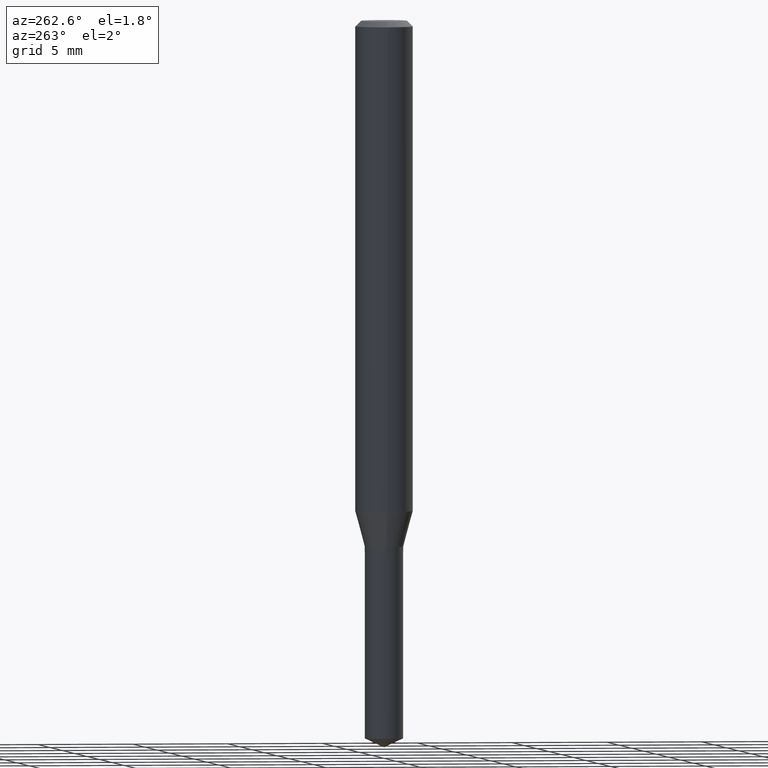
[diagram: clean part render]
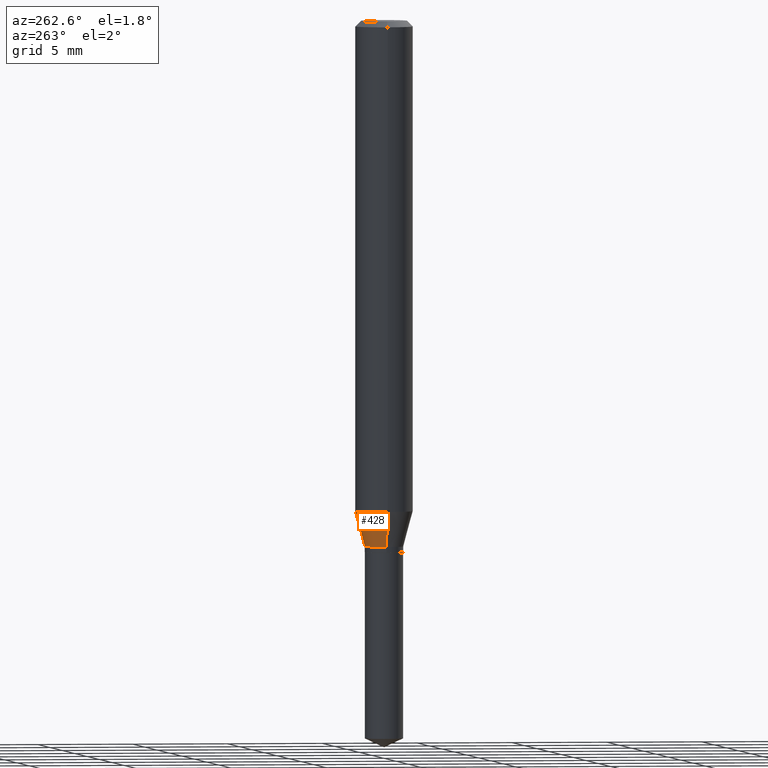
[diagram: same view with one face highlighted and labeled with its STEP entity id]
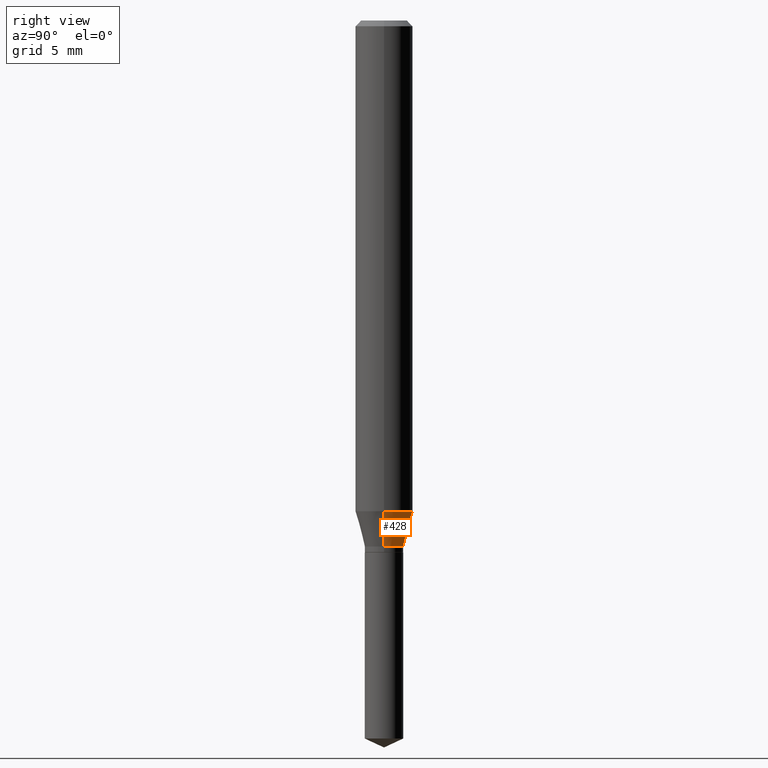
[diagram: same view with one face highlighted and labeled with its STEP entity id]
A machine part, auxiliary view. The second image highlights one B-rep face of the part: STEP entity #428.
A second angle (right view) of the same face is appended — the face is thin or edge-on in the first view.
In plain terms, the highlighted conical surface has half-angle 15 deg.
Its self-contained STEP definition (entity closure, byte-faithful):
#2 = CARTESIAN_POINT ( 'NONE',  ( -0.03954999999999996019, -3.518759489069875507E-15, -1.082600000000000007 ) ) ;
#11 = ORIENTED_EDGE ( 'NONE', *, *, #432, .F. ) ;
#46 = CIRCLE ( 'NONE', #184, 0.03954999999999996019 ) ;
#52 = VECTOR ( 'NONE', #305, 39.37007874015747433 ) ;
#56 = DIRECTION ( 'NONE',  ( -2.445468806185136597E-29, 3.491481338843145583E-15, 1.000000000000000000 ) ) ;
#76 = ORIENTED_EDGE ( 'NONE', *, *, #318, .T. ) ;
#127 = VERTEX_POINT ( 'NONE', #193 ) ;
#152 = CARTESIAN_POINT ( 'NONE',  ( -0.03954999999999996019, -3.498858045438469971E-15, -1.082600000000000007 ) ) ;
#156 = EDGE_CURVE ( 'NONE', #201, #370, #185, .T. ) ;
#170 = DIRECTION ( 'NONE',  ( 0.2588190451025213501, 1.565188264969621968E-15, 0.9659258262890682012 ) ) ;
#173 = DIRECTION ( 'NONE',  ( -2.445468806185136597E-29, 3.491481338843145583E-15, 1.000000000000000000 ) ) ;
#177 = CARTESIAN_POINT ( 'NONE',  ( 2.647464529576028949E-29, -3.779877697431589411E-15, -1.082600000000000007 ) ) ;
#184 = AXIS2_PLACEMENT_3D ( 'NONE', #293, #56, #269 ) ;
#185 = LINE ( 'NONE', #152, #52 ) ;
#193 = CARTESIAN_POINT ( 'NONE',  ( 0.03954999999999996019, -4.056053871334080742E-15, -1.082600000000000007 ) ) ;
#201 = VERTEX_POINT ( 'NONE', #2 ) ;
#206 = DIRECTION ( 'NONE',  ( 1.000000000000000000, -6.982962677686266711E-15, 0.000000000000000000 ) ) ;
#216 = AXIS2_PLACEMENT_3D ( 'NONE', #177, #431, #371 ) ;
#267 = CARTESIAN_POINT ( 'NONE',  ( 0.05905000000000011628, -3.938129121419258704E-15, -1.009825009252406369 ) ) ;
#269 = DIRECTION ( 'NONE',  ( 1.000000000000000000, -6.982962677686262766E-15, 0.000000000000000000 ) ) ;
#283 = CARTESIAN_POINT ( 'NONE',  ( -0.05905000000000011628, -3.106209689835544291E-15, -1.009825009252406369 ) ) ;
#293 = CARTESIAN_POINT ( 'NONE',  ( 2.647464529576028949E-29, -3.779877697431589411E-15, -1.082600000000000007 ) ) ;
#296 = VECTOR ( 'NONE', #170, 39.37007874015747433 ) ;
#303 = AXIS2_PLACEMENT_3D ( 'NONE', #338, #173, #206 ) ;
#305 = DIRECTION ( 'NONE',  ( -0.2588190451025213501, 5.211531920934551042E-15, 0.9659258262890682012 ) ) ;
#318 = EDGE_CURVE ( 'NONE', #127, #201, #46, .T. ) ;
#328 = EDGE_CURVE ( 'NONE', #127, #353, #423, .T. ) ;
#333 = CARTESIAN_POINT ( 'NONE',  ( 0.03954999999999996019, -4.056053871334080742E-15, -1.082600000000000007 ) ) ;
#338 = CARTESIAN_POINT ( 'NONE',  ( 2.469495559832377020E-29, -3.525785175301884178E-15, -1.009825009252406369 ) ) ;
#353 = VERTEX_POINT ( 'NONE', #267 ) ;
#368 = CONICAL_SURFACE ( 'NONE', #216, 0.03954999999999996019, 0.2617993877991500740 ) ;
#370 = VERTEX_POINT ( 'NONE', #283 ) ;
#371 = DIRECTION ( 'NONE',  ( 1.000000000000000000, -6.982962677686262766E-15, 0.000000000000000000 ) ) ;
#390 = EDGE_LOOP ( 'NONE', ( #76, #394, #11, #401 ) ) ;
#394 = ORIENTED_EDGE ( 'NONE', *, *, #156, .T. ) ;
#396 = FACE_OUTER_BOUND ( 'NONE', #390, .T. ) ;
#401 = ORIENTED_EDGE ( 'NONE', *, *, #328, .F. ) ;
#423 = LINE ( 'NONE', #333, #296 ) ;
#428 = ADVANCED_FACE ( 'NONE', ( #396 ), #368, .T. ) ;
#431 = DIRECTION ( 'NONE',  ( -2.445468806185136597E-29, 3.491481338843145583E-15, 1.000000000000000000 ) ) ;
#432 = EDGE_CURVE ( 'NONE', #353, #370, #485, .T. ) ;
#485 = CIRCLE ( 'NONE', #303, 0.05905000000000011628 ) ;